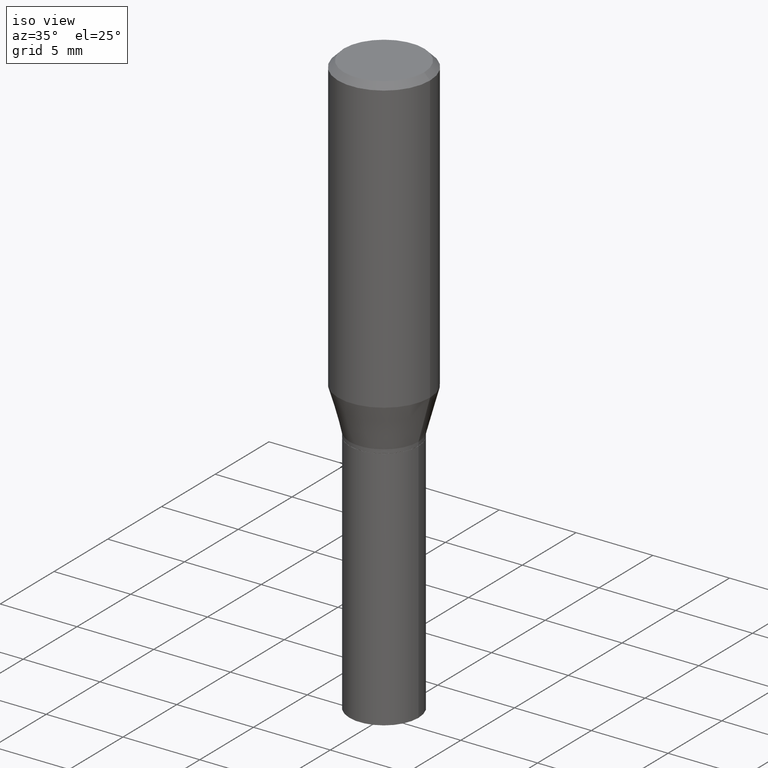
[diagram: clean part render]
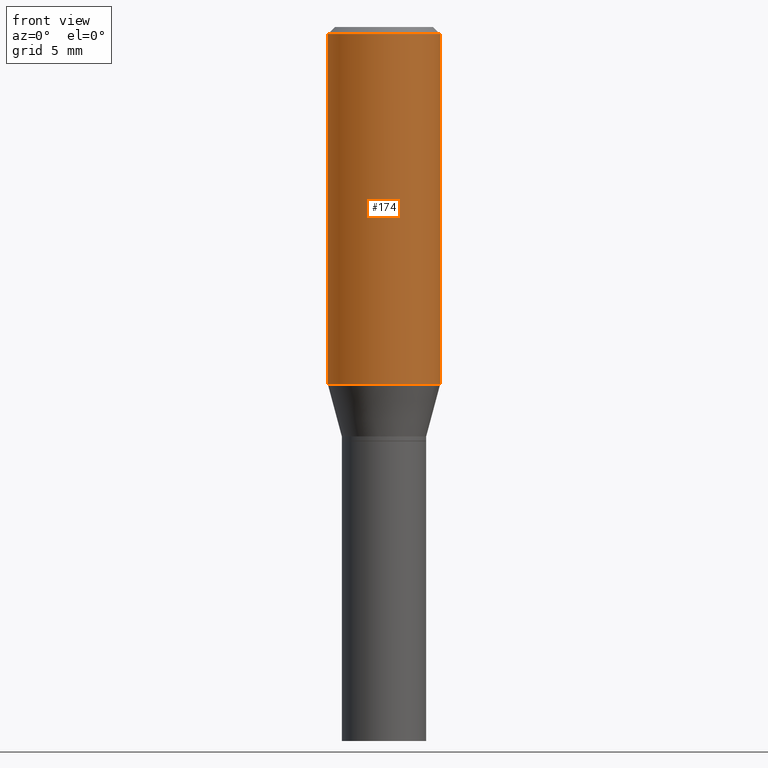
[diagram: tour spotlight — one face highlighted and labeled with its STEP entity id]
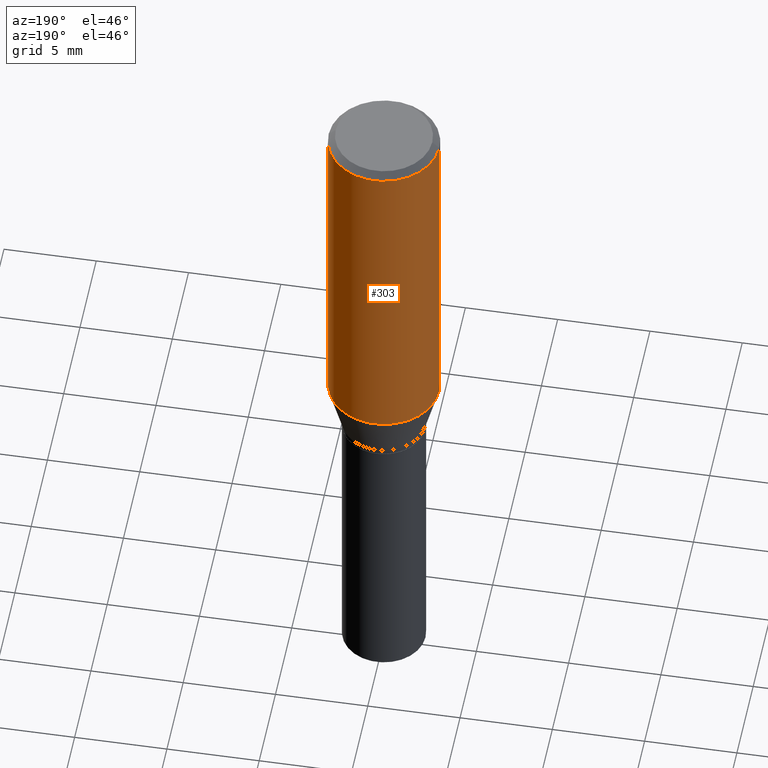
[diagram: tour spotlight — one face highlighted and labeled with its STEP entity id]
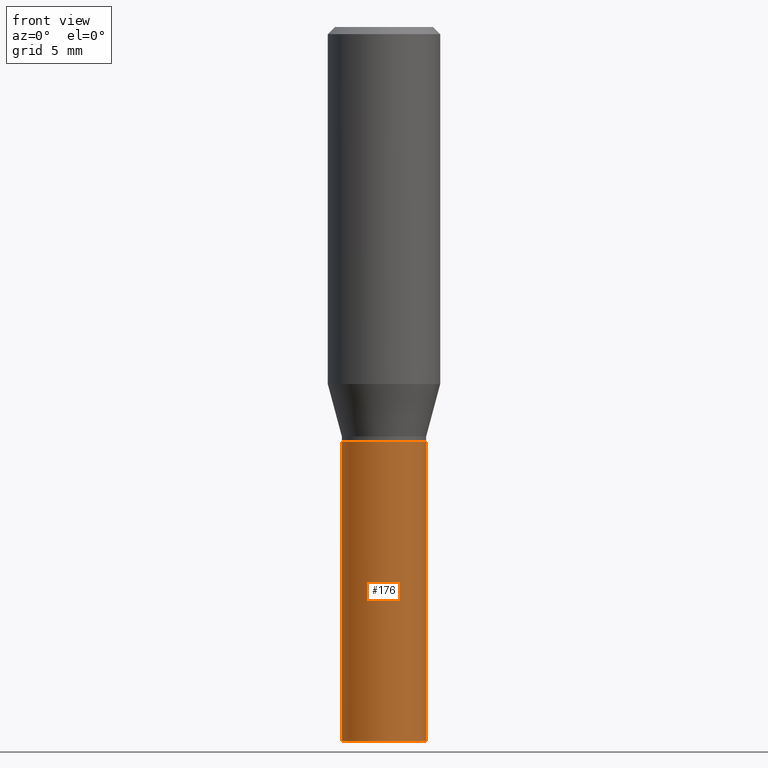
[diagram: tour spotlight — one face highlighted and labeled with its STEP entity id]
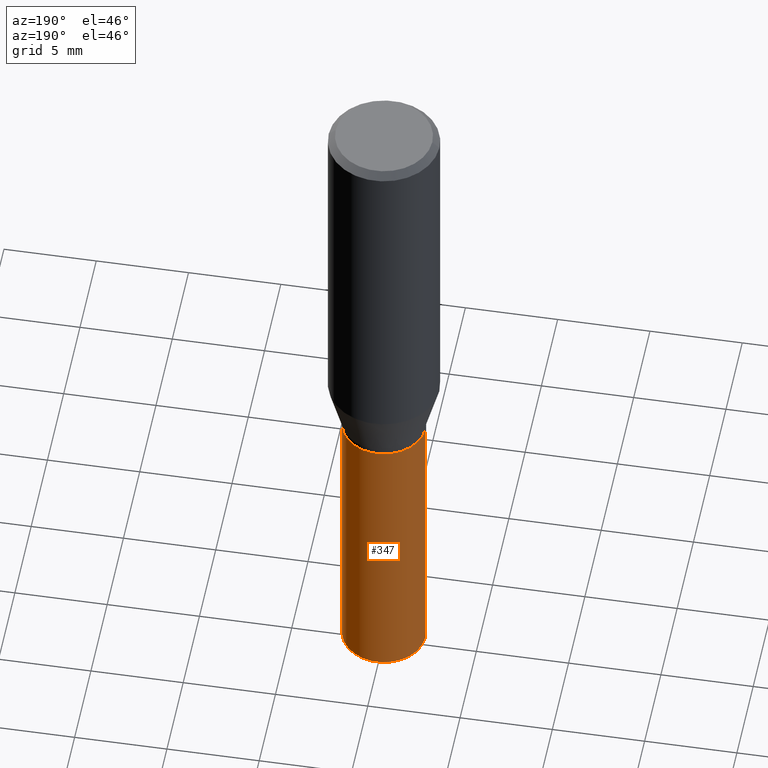
[diagram: tour spotlight — one face highlighted and labeled with its STEP entity id]
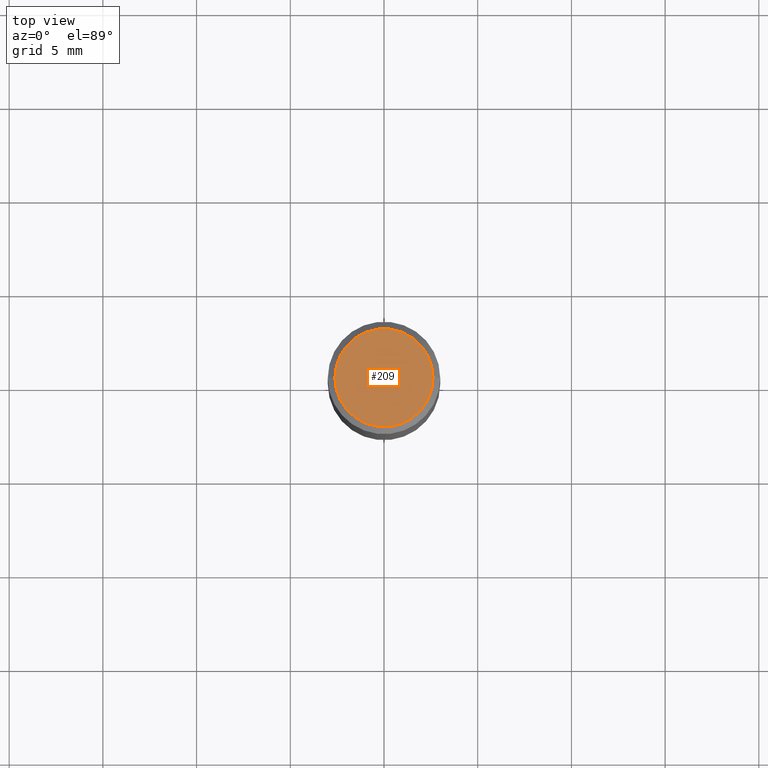
[diagram: tour spotlight — one face highlighted and labeled with its STEP entity id]
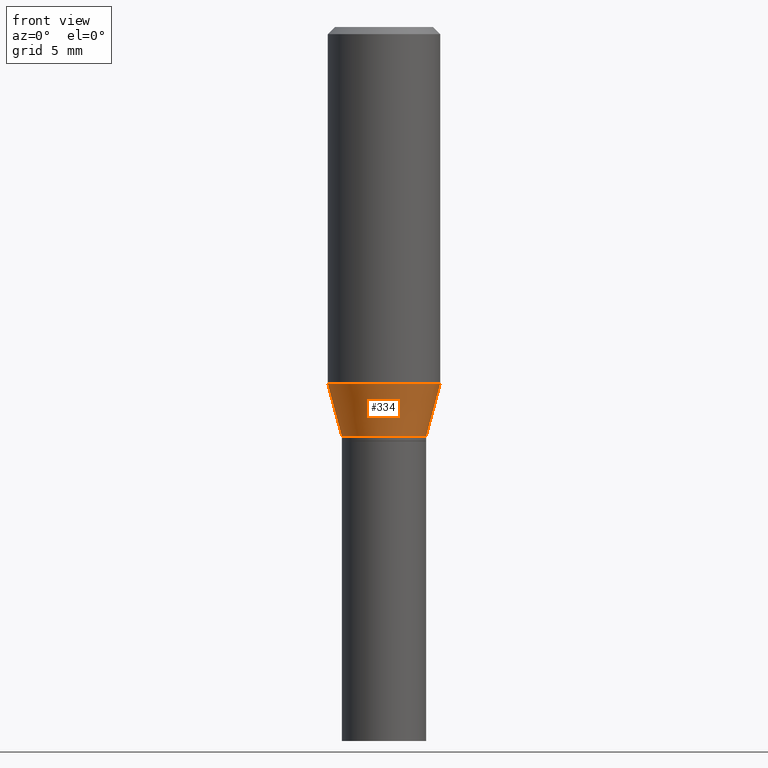
[diagram: tour spotlight — one face highlighted and labeled with its STEP entity id]
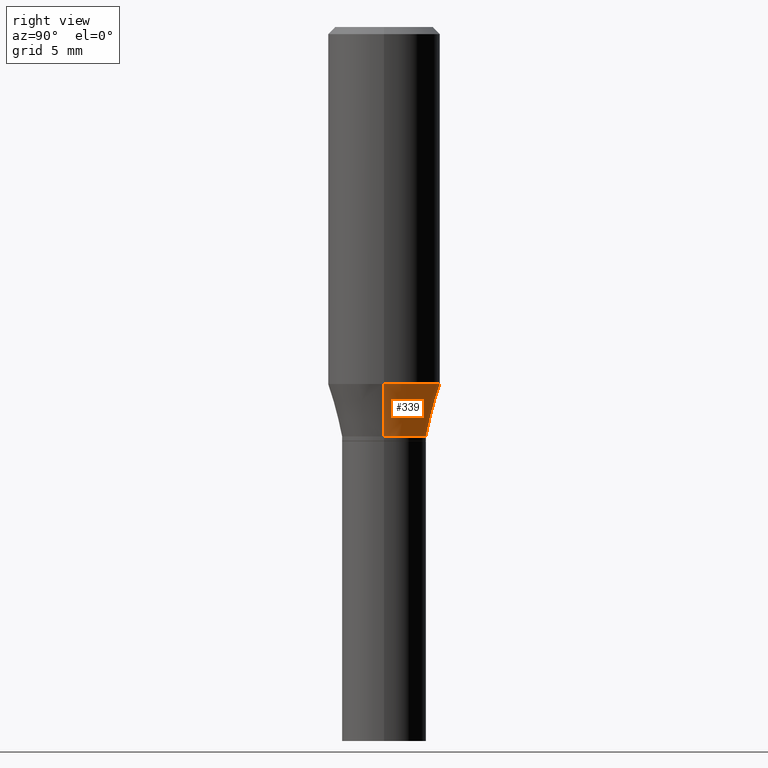
[diagram: tour spotlight — one face highlighted and labeled with its STEP entity id]
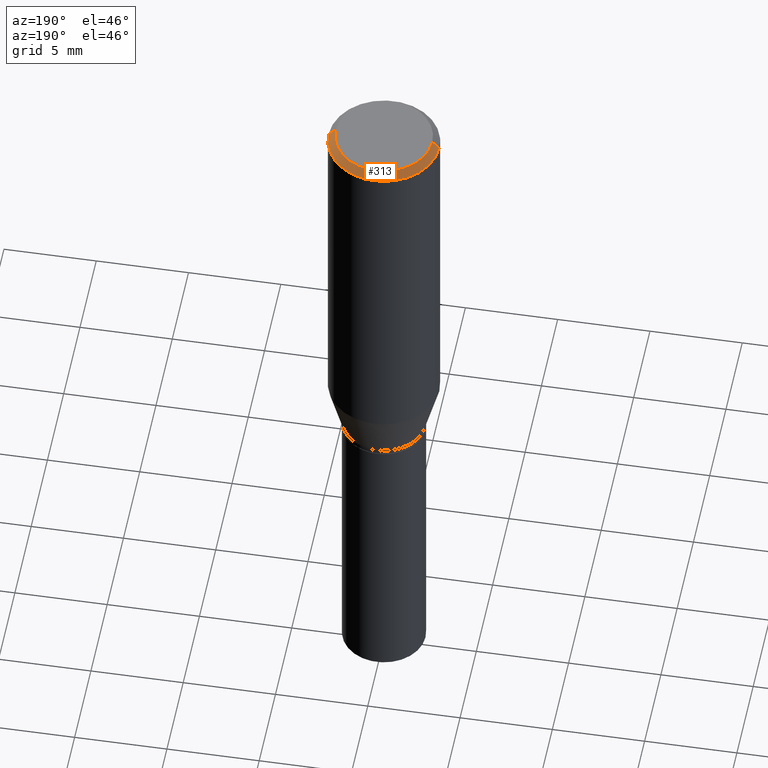
[diagram: tour spotlight — one face highlighted and labeled with its STEP entity id]
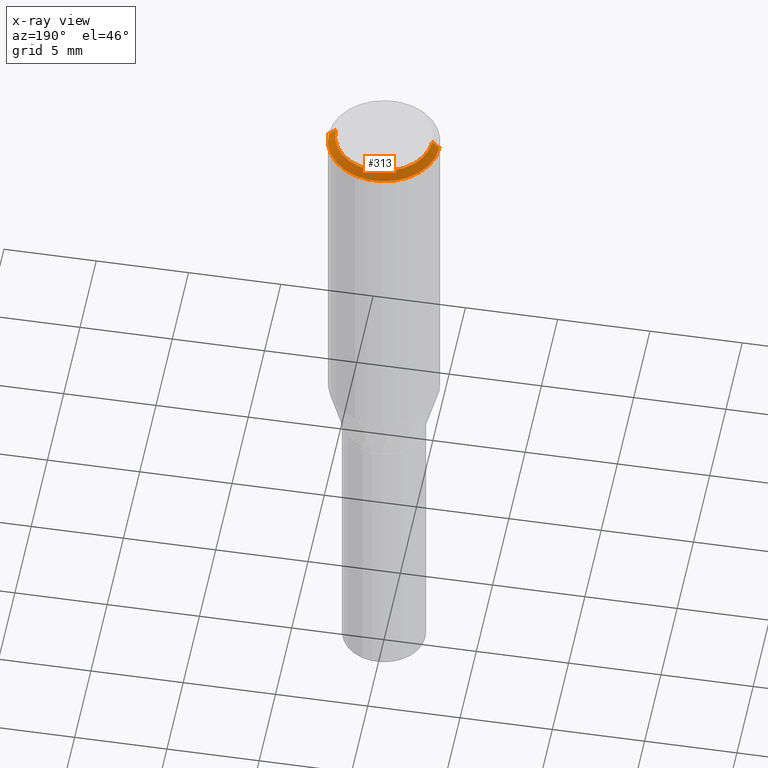
[diagram: x-ray of the same camera — body ghosted, this tour face saturated]
A machine part: a face-by-face anatomy tour. The part has 16 B-rep faces; the first image is the clean iso view, then the 8 largest visible faces are spotlighted one at a time (largest first), each with its STEP entity span.

Face 1 — front view, entity #174. In plain terms, the highlighted cylindrical surface (partial cylindrical patch) has radius 2.9997 mm, axis along (-0, 0, 1).
Definition (entity closure, byte-faithful):
#6 = ORIENTED_EDGE ( 'NONE', *, *, #231, .T. ) ;
#14 = EDGE_LOOP ( 'NONE', ( #377, #137, #6, #222 ) ) ;
#27 = CIRCLE ( 'NONE', #414, 0.1180999999999999966 ) ;
#35 = CARTESIAN_POINT ( 'NONE',  ( 1.834112612126108296E-29, -2.618626719906874490E-15, -0.7500045011767184633 ) ) ;
#36 = CARTESIAN_POINT ( 'NONE',  ( 0.1180999999999999966, -8.246878922347480654E-16, 5.758764772215000440E-30 ) ) ;
#43 = VERTEX_POINT ( 'NONE', #270 ) ;
#59 = CARTESIAN_POINT ( 'NONE',  ( 0.1180999999999999966, -3.443314612141622752E-15, -0.7500045011767184633 ) ) ;
#66 = DIRECTION ( 'NONE',  ( 1.000000000000000000, -6.982962677686266711E-15, 4.876176775795936353E-29 ) ) ;
#76 = EDGE_CURVE ( 'NONE', #466, #365, #441, .T. ) ;
#98 = CARTESIAN_POINT ( 'NONE',  ( -0.1180999999999999966, -4.963484990620824888E-16, -0.01499999999999999944 ) ) ;
#104 = CYLINDRICAL_SURFACE ( 'NONE', #364, 0.1180999999999999966 ) ;
#133 = DIRECTION ( 'NONE',  ( -2.445468806185136597E-29, 3.491481338843145583E-15, 1.000000000000000000 ) ) ;
#134 = EDGE_CURVE ( 'NONE', #43, #466, #357, .T. ) ;
#137 = ORIENTED_EDGE ( 'NONE', *, *, #283, .T. ) ;
#140 = DIRECTION ( 'NONE',  ( 1.000000000000000000, -6.982962677686266711E-15, 0.000000000000000000 ) ) ;
#164 = AXIS2_PLACEMENT_3D ( 'NONE', #400, #324, #140 ) ;
#172 = VERTEX_POINT ( 'NONE', #59 ) ;
#174 = ADVANCED_FACE ( 'NONE', ( #359 ), #104, .T. ) ;
#197 = CARTESIAN_POINT ( 'NONE',  ( 0.1180999999999999966, -8.770601123173952432E-16, -0.01499999999999999944 ) ) ;
#214 = DIRECTION ( 'NONE',  ( -2.445468806185136597E-29, 3.491481338843145583E-15, 1.000000000000000000 ) ) ;
#222 = ORIENTED_EDGE ( 'NONE', *, *, #76, .F. ) ;
#224 = DIRECTION ( 'NONE',  ( 1.000000000000000000, -6.982962677686269077E-15, 0.000000000000000000 ) ) ;
#231 = EDGE_CURVE ( 'NONE', #172, #365, #293, .T. ) ;
#237 = VECTOR ( 'NONE', #331, 39.37007874015748143 ) ;
#246 = CARTESIAN_POINT ( 'NONE',  ( -0.1180999999999999966, 8.391509709326782957E-16, -5.809262341591043784E-30 ) ) ;
#270 = CARTESIAN_POINT ( 'NONE',  ( -0.1180999999999999966, -1.779475748974195898E-15, -0.7500045011767184633 ) ) ;
#280 = VECTOR ( 'NONE', #464, 39.37007874015748143 ) ;
#283 = EDGE_CURVE ( 'NONE', #43, #172, #27, .T. ) ;
#293 = LINE ( 'NONE', #36, #237 ) ;
#317 = CARTESIAN_POINT ( 'NONE',  ( 0.000000000000000000, 0.000000000000000000, 0.000000000000000000 ) ) ;
#324 = DIRECTION ( 'NONE',  ( -2.445468806185136597E-29, 3.491481338843145583E-15, 1.000000000000000000 ) ) ;
#331 = DIRECTION ( 'NONE',  ( -2.445468806185136877E-29, 3.491481338843145188E-15, 1.000000000000000000 ) ) ;
#357 = LINE ( 'NONE', #246, #280 ) ;
#359 = FACE_OUTER_BOUND ( 'NONE', #14, .T. ) ;
#364 = AXIS2_PLACEMENT_3D ( 'NONE', #317, #133, #66 ) ;
#365 = VERTEX_POINT ( 'NONE', #197 ) ;
#377 = ORIENTED_EDGE ( 'NONE', *, *, #134, .F. ) ;
#400 = CARTESIAN_POINT ( 'NONE',  ( 3.668203209277705088E-31, -5.237222008264718399E-17, -0.01499999999999999944 ) ) ;
#414 = AXIS2_PLACEMENT_3D ( 'NONE', #35, #214, #224 ) ;
#441 = CIRCLE ( 'NONE', #164, 0.1180999999999999966 ) ;
#464 = DIRECTION ( 'NONE',  ( -2.445468806185136877E-29, 3.491481338843145188E-15, 1.000000000000000000 ) ) ;
#466 = VERTEX_POINT ( 'NONE', #98 ) ;

Face 2 — auxiliary view, entity #303. In plain terms, the highlighted cylindrical surface (partial cylindrical patch) has radius 2.9997 mm, axis along (-0, 0, 1).
Definition (entity closure, byte-faithful):
#3 = EDGE_CURVE ( 'NONE', #172, #43, #121, .T. ) ;
#4 = DIRECTION ( 'NONE',  ( 1.000000000000000000, -6.982962677686266711E-15, 0.000000000000000000 ) ) ;
#10 = CARTESIAN_POINT ( 'NONE',  ( 0.000000000000000000, 0.000000000000000000, 0.000000000000000000 ) ) ;
#36 = CARTESIAN_POINT ( 'NONE',  ( 0.1180999999999999966, -8.246878922347480654E-16, 5.758764772215000440E-30 ) ) ;
#43 = VERTEX_POINT ( 'NONE', #270 ) ;
#57 = CIRCLE ( 'NONE', #295, 0.1180999999999999966 ) ;
#58 = DIRECTION ( 'NONE',  ( -2.445468806185136597E-29, 3.491481338843145583E-15, 1.000000000000000000 ) ) ;
#59 = CARTESIAN_POINT ( 'NONE',  ( 0.1180999999999999966, -3.443314612141622752E-15, -0.7500045011767184633 ) ) ;
#74 = DIRECTION ( 'NONE',  ( 1.000000000000000000, -6.982962677686266711E-15, 4.876176775795936353E-29 ) ) ;
#81 = ORIENTED_EDGE ( 'NONE', *, *, #231, .F. ) ;
#98 = CARTESIAN_POINT ( 'NONE',  ( -0.1180999999999999966, -4.963484990620824888E-16, -0.01499999999999999944 ) ) ;
#121 = CIRCLE ( 'NONE', #336, 0.1180999999999999966 ) ;
#134 = EDGE_CURVE ( 'NONE', #43, #466, #357, .T. ) ;
#141 = ORIENTED_EDGE ( 'NONE', *, *, #332, .F. ) ;
#146 = EDGE_LOOP ( 'NONE', ( #375, #444, #141, #81 ) ) ;
#172 = VERTEX_POINT ( 'NONE', #59 ) ;
#181 = FACE_OUTER_BOUND ( 'NONE', #146, .T. ) ;
#192 = DIRECTION ( 'NONE',  ( -2.445468806185136597E-29, 3.491481338843145583E-15, 1.000000000000000000 ) ) ;
#197 = CARTESIAN_POINT ( 'NONE',  ( 0.1180999999999999966, -8.770601123173952432E-16, -0.01499999999999999944 ) ) ;
#231 = EDGE_CURVE ( 'NONE', #172, #365, #293, .T. ) ;
#237 = VECTOR ( 'NONE', #331, 39.37007874015748143 ) ;
#246 = CARTESIAN_POINT ( 'NONE',  ( -0.1180999999999999966, 8.391509709326782957E-16, -5.809262341591043784E-30 ) ) ;
#259 = DIRECTION ( 'NONE',  ( -2.445468806185136597E-29, 3.491481338843145583E-15, 1.000000000000000000 ) ) ;
#267 = AXIS2_PLACEMENT_3D ( 'NONE', #10, #259, #74 ) ;
#270 = CARTESIAN_POINT ( 'NONE',  ( -0.1180999999999999966, -1.779475748974195898E-15, -0.7500045011767184633 ) ) ;
#280 = VECTOR ( 'NONE', #464, 39.37007874015748143 ) ;
#293 = LINE ( 'NONE', #36, #237 ) ;
#295 = AXIS2_PLACEMENT_3D ( 'NONE', #443, #192, #4 ) ;
#303 = ADVANCED_FACE ( 'NONE', ( #181 ), #337, .T. ) ;
#331 = DIRECTION ( 'NONE',  ( -2.445468806185136877E-29, 3.491481338843145188E-15, 1.000000000000000000 ) ) ;
#332 = EDGE_CURVE ( 'NONE', #365, #466, #57, .T. ) ;
#336 = AXIS2_PLACEMENT_3D ( 'NONE', #418, #58, #460 ) ;
#337 = CYLINDRICAL_SURFACE ( 'NONE', #267, 0.1180999999999999966 ) ;
#357 = LINE ( 'NONE', #246, #280 ) ;
#365 = VERTEX_POINT ( 'NONE', #197 ) ;
#375 = ORIENTED_EDGE ( 'NONE', *, *, #3, .T. ) ;
#418 = CARTESIAN_POINT ( 'NONE',  ( 1.834112612126108296E-29, -2.618626719906874490E-15, -0.7500045011767184633 ) ) ;
#443 = CARTESIAN_POINT ( 'NONE',  ( 3.668203209277705088E-31, -5.237222008264718399E-17, -0.01499999999999999944 ) ) ;
#444 = ORIENTED_EDGE ( 'NONE', *, *, #134, .T. ) ;
#460 = DIRECTION ( 'NONE',  ( 1.000000000000000000, -6.982962677686269077E-15, 0.000000000000000000 ) ) ;
#464 = DIRECTION ( 'NONE',  ( -2.445468806185136877E-29, 3.491481338843145188E-15, 1.000000000000000000 ) ) ;
#466 = VERTEX_POINT ( 'NONE', #98 ) ;

Face 3 — front view, entity #176. In plain terms, the highlighted cylindrical surface (partial cylindrical patch) has radius 2.2504 mm, axis along (-0, 0, 1).
Definition (entity closure, byte-faithful):
#34 = AXIS2_PLACEMENT_3D ( 'NONE', #457, #459, #165 ) ;
#47 = DIRECTION ( 'NONE',  ( -2.445468806185136877E-29, 3.491481338843145188E-15, 1.000000000000000000 ) ) ;
#84 = ORIENTED_EDGE ( 'NONE', *, *, #387, .F. ) ;
#85 = CARTESIAN_POINT ( 'NONE',  ( 0.08859999999999999820, -6.186904932430032487E-16, 4.320292623355198765E-30 ) ) ;
#90 = DIRECTION ( 'NONE',  ( 1.000000000000000000, -6.982962677686269077E-15, 0.000000000000000000 ) ) ;
#94 = CARTESIAN_POINT ( 'NONE',  ( -0.08859999999999999820, 6.295408638834487519E-16, -4.358176489965846267E-30 ) ) ;
#95 = VERTEX_POINT ( 'NONE', #402 ) ;
#97 = CIRCLE ( 'NONE', #34, 0.08859999999999999820 ) ;
#99 = EDGE_LOOP ( 'NONE', ( #279, #390, #150, #84 ) ) ;
#150 = ORIENTED_EDGE ( 'NONE', *, *, #354, .T. ) ;
#153 = VERTEX_POINT ( 'NONE', #167 ) ;
#165 = DIRECTION ( 'NONE',  ( 1.000000000000000000, -6.982962677686263555E-15, 0.000000000000000000 ) ) ;
#167 = CARTESIAN_POINT ( 'NONE',  ( 0.08859999999999999820, -5.855912501507721918E-15, -1.500000000000000222 ) ) ;
#176 = ADVANCED_FACE ( 'NONE', ( #465 ), #429, .T. ) ;
#182 = VERTEX_POINT ( 'NONE', #249 ) ;
#183 = CARTESIAN_POINT ( 'NONE',  ( -0.08859999999999999820, -3.508039096712621630E-15, -0.8701000000000000956 ) ) ;
#195 = LINE ( 'NONE', #94, #307 ) ;
#205 = DIRECTION ( 'NONE',  ( 1.000000000000000000, -6.982962677686266711E-15, 4.876176775795935232E-29 ) ) ;
#210 = CARTESIAN_POINT ( 'NONE',  ( 0.000000000000000000, 0.000000000000000000, 0.000000000000000000 ) ) ;
#232 = DIRECTION ( 'NONE',  ( -2.445468806185136597E-29, 3.491481338843145583E-15, 1.000000000000000000 ) ) ;
#244 = VECTOR ( 'NONE', #47, 39.37007874015748143 ) ;
#247 = DIRECTION ( 'NONE',  ( -2.445468806185136597E-29, 3.491481338843145583E-15, 1.000000000000000000 ) ) ;
#248 = DIRECTION ( 'NONE',  ( -2.445468806185136877E-29, 3.491481338843145188E-15, 1.000000000000000000 ) ) ;
#249 = CARTESIAN_POINT ( 'NONE',  ( 0.08859999999999999820, -3.656628406170424159E-15, -0.8701000000000000956 ) ) ;
#269 = LINE ( 'NONE', #85, #244 ) ;
#279 = ORIENTED_EDGE ( 'NONE', *, *, #432, .F. ) ;
#281 = CIRCLE ( 'NONE', #405, 0.08859999999999999820 ) ;
#305 = VERTEX_POINT ( 'NONE', #183 ) ;
#307 = VECTOR ( 'NONE', #248, 39.37007874015748143 ) ;
#348 = AXIS2_PLACEMENT_3D ( 'NONE', #210, #247, #205 ) ;
#354 = EDGE_CURVE ( 'NONE', #153, #182, #269, .T. ) ;
#361 = EDGE_CURVE ( 'NONE', #95, #153, #281, .T. ) ;
#387 = EDGE_CURVE ( 'NONE', #305, #182, #97, .T. ) ;
#390 = ORIENTED_EDGE ( 'NONE', *, *, #361, .T. ) ;
#402 = CARTESIAN_POINT ( 'NONE',  ( -0.08859999999999999820, -3.508039096712621630E-15, -1.500000000000000222 ) ) ;
#405 = AXIS2_PLACEMENT_3D ( 'NONE', #455, #232, #90 ) ;
#429 = CYLINDRICAL_SURFACE ( 'NONE', #348, 0.08859999999999999820 ) ;
#432 = EDGE_CURVE ( 'NONE', #95, #305, #195, .T. ) ;
#455 = CARTESIAN_POINT ( 'NONE',  ( 3.668203209277704895E-29, -5.237222008264718177E-15, -1.500000000000000222 ) ) ;
#457 = CARTESIAN_POINT ( 'NONE',  ( 2.127802408261687534E-29, -3.037937912927421601E-15, -0.8701000000000000956 ) ) ;
#459 = DIRECTION ( 'NONE',  ( -2.445468806185136597E-29, 3.491481338843145583E-15, 1.000000000000000000 ) ) ;
#465 = FACE_OUTER_BOUND ( 'NONE', #99, .T. ) ;

Face 4 — auxiliary view, entity #347. In plain terms, the highlighted cylindrical surface (partial cylindrical patch) has radius 2.2504 mm, axis along (-0, 0, 1).
Definition (entity closure, byte-faithful):
#16 = CARTESIAN_POINT ( 'NONE',  ( 0.000000000000000000, 0.000000000000000000, 0.000000000000000000 ) ) ;
#47 = DIRECTION ( 'NONE',  ( -2.445468806185136877E-29, 3.491481338843145188E-15, 1.000000000000000000 ) ) ;
#49 = AXIS2_PLACEMENT_3D ( 'NONE', #417, #87, #91 ) ;
#85 = CARTESIAN_POINT ( 'NONE',  ( 0.08859999999999999820, -6.186904932430032487E-16, 4.320292623355198765E-30 ) ) ;
#87 = DIRECTION ( 'NONE',  ( -2.445468806185136597E-29, 3.491481338843145583E-15, 1.000000000000000000 ) ) ;
#91 = DIRECTION ( 'NONE',  ( 1.000000000000000000, -6.982962677686263555E-15, 0.000000000000000000 ) ) ;
#94 = CARTESIAN_POINT ( 'NONE',  ( -0.08859999999999999820, 6.295408638834487519E-16, -4.358176489965846267E-30 ) ) ;
#95 = VERTEX_POINT ( 'NONE', #402 ) ;
#103 = CIRCLE ( 'NONE', #258, 0.08859999999999999820 ) ;
#138 = DIRECTION ( 'NONE',  ( -2.445468806185136597E-29, 3.491481338843145583E-15, 1.000000000000000000 ) ) ;
#145 = EDGE_CURVE ( 'NONE', #153, #95, #103, .T. ) ;
#153 = VERTEX_POINT ( 'NONE', #167 ) ;
#155 = ORIENTED_EDGE ( 'NONE', *, *, #354, .F. ) ;
#161 = DIRECTION ( 'NONE',  ( -2.445468806185136597E-29, 3.491481338843145583E-15, 1.000000000000000000 ) ) ;
#166 = DIRECTION ( 'NONE',  ( 1.000000000000000000, -6.982962677686269077E-15, 0.000000000000000000 ) ) ;
#167 = CARTESIAN_POINT ( 'NONE',  ( 0.08859999999999999820, -5.855912501507721918E-15, -1.500000000000000222 ) ) ;
#179 = EDGE_LOOP ( 'NONE', ( #297, #407, #333, #155 ) ) ;
#182 = VERTEX_POINT ( 'NONE', #249 ) ;
#183 = CARTESIAN_POINT ( 'NONE',  ( -0.08859999999999999820, -3.508039096712621630E-15, -0.8701000000000000956 ) ) ;
#195 = LINE ( 'NONE', #94, #307 ) ;
#244 = VECTOR ( 'NONE', #47, 39.37007874015748143 ) ;
#248 = DIRECTION ( 'NONE',  ( -2.445468806185136877E-29, 3.491481338843145188E-15, 1.000000000000000000 ) ) ;
#249 = CARTESIAN_POINT ( 'NONE',  ( 0.08859999999999999820, -3.656628406170424159E-15, -0.8701000000000000956 ) ) ;
#258 = AXIS2_PLACEMENT_3D ( 'NONE', #321, #138, #166 ) ;
#269 = LINE ( 'NONE', #85, #244 ) ;
#297 = ORIENTED_EDGE ( 'NONE', *, *, #145, .T. ) ;
#305 = VERTEX_POINT ( 'NONE', #183 ) ;
#307 = VECTOR ( 'NONE', #248, 39.37007874015748143 ) ;
#310 = DIRECTION ( 'NONE',  ( 1.000000000000000000, -6.982962677686266711E-15, 4.876176775795935232E-29 ) ) ;
#321 = CARTESIAN_POINT ( 'NONE',  ( 3.668203209277704895E-29, -5.237222008264718177E-15, -1.500000000000000222 ) ) ;
#333 = ORIENTED_EDGE ( 'NONE', *, *, #382, .F. ) ;
#347 = ADVANCED_FACE ( 'NONE', ( #352 ), #422, .T. ) ;
#352 = FACE_OUTER_BOUND ( 'NONE', #179, .T. ) ;
#354 = EDGE_CURVE ( 'NONE', #153, #182, #269, .T. ) ;
#363 = CIRCLE ( 'NONE', #49, 0.08859999999999999820 ) ;
#382 = EDGE_CURVE ( 'NONE', #182, #305, #363, .T. ) ;
#402 = CARTESIAN_POINT ( 'NONE',  ( -0.08859999999999999820, -3.508039096712621630E-15, -1.500000000000000222 ) ) ;
#407 = ORIENTED_EDGE ( 'NONE', *, *, #432, .T. ) ;
#417 = CARTESIAN_POINT ( 'NONE',  ( 2.127802408261687534E-29, -3.037937912927421601E-15, -0.8701000000000000956 ) ) ;
#422 = CYLINDRICAL_SURFACE ( 'NONE', #450, 0.08859999999999999820 ) ;
#432 = EDGE_CURVE ( 'NONE', #95, #305, #195, .T. ) ;
#450 = AXIS2_PLACEMENT_3D ( 'NONE', #16, #161, #310 ) ;

Face 5 — top view, entity #209. In plain terms, the highlighted planar face has unit normal (0, -0, -1).
Definition (entity closure, byte-faithful):
#39 = VERTEX_POINT ( 'NONE', #236 ) ;
#51 = EDGE_CURVE ( 'NONE', #286, #39, #319, .T. ) ;
#71 = AXIS2_PLACEMENT_3D ( 'NONE', #77, #437, #304 ) ;
#77 = CARTESIAN_POINT ( 'NONE',  ( 4.647400995173613138E-45, -6.635256932220833331E-31, -1.900413116462290932E-16 ) ) ;
#89 = CIRCLE ( 'NONE', #71, 0.1031000000000000111 ) ;
#115 = ORIENTED_EDGE ( 'NONE', *, *, #326, .T. ) ;
#119 = PLANE ( 'NONE',  #131 ) ;
#131 = AXIS2_PLACEMENT_3D ( 'NONE', #374, #371, #448 ) ;
#154 = CARTESIAN_POINT ( 'NONE',  ( 0.1031000000000000111, -7.849571885948552706E-16, -1.900413116462238423E-16 ) ) ;
#162 = DIRECTION ( 'NONE',  ( -2.445468806185136597E-29, 3.491481338843145583E-15, 1.000000000000000000 ) ) ;
#189 = AXIS2_PLACEMENT_3D ( 'NONE', #423, #162, #242 ) ;
#209 = ADVANCED_FACE ( 'NONE', ( #263 ), #119, .F. ) ;
#236 = CARTESIAN_POINT ( 'NONE',  ( -0.1031000000000000111, 7.461295621107772493E-16, -1.900413116462341961E-16 ) ) ;
#241 = EDGE_LOOP ( 'NONE', ( #115, #323 ) ) ;
#242 = DIRECTION ( 'NONE',  ( 1.000000000000000000, -6.982962677686265922E-15, 4.883331232093008327E-29 ) ) ;
#263 = FACE_OUTER_BOUND ( 'NONE', #241, .T. ) ;
#286 = VERTEX_POINT ( 'NONE', #154 ) ;
#304 = DIRECTION ( 'NONE',  ( 1.000000000000000000, -6.982962677686265922E-15, 4.883331232093008327E-29 ) ) ;
#319 = CIRCLE ( 'NONE', #189, 0.1031000000000000111 ) ;
#323 = ORIENTED_EDGE ( 'NONE', *, *, #51, .T. ) ;
#326 = EDGE_CURVE ( 'NONE', #39, #286, #89, .T. ) ;
#371 = DIRECTION ( 'NONE',  ( 2.438088387897960049E-29, -3.491481338843145188E-15, -1.000000000000000000 ) ) ;
#374 = CARTESIAN_POINT ( 'NONE',  ( 7.199434520694541042E-16, 0.1031000000000000111, -4.549923818578428559E-16 ) ) ;
#423 = CARTESIAN_POINT ( 'NONE',  ( 4.647400995173613138E-45, -6.635256932220833331E-31, -1.900413116462290932E-16 ) ) ;
#437 = DIRECTION ( 'NONE',  ( -2.445468806185136597E-29, 3.491481338843145583E-15, 1.000000000000000000 ) ) ;
#448 = DIRECTION ( 'NONE',  ( -1.000000000000000000, 6.982962677686265922E-15, -4.876176775795935793E-29 ) ) ;

Face 6 — front view, entity #334. In plain terms, the highlighted conical surface has half-angle 15 deg.
Definition (entity closure, byte-faithful):
#5 = EDGE_CURVE ( 'NONE', #196, #43, #86, .T. ) ;
#11 = ORIENTED_EDGE ( 'NONE', *, *, #5, .F. ) ;
#13 = CARTESIAN_POINT ( 'NONE',  ( 2.103347720199836549E-29, -3.003023099538990346E-15, -0.8601000000000001977 ) ) ;
#15 = EDGE_CURVE ( 'NONE', #196, #215, #207, .T. ) ;
#18 = DIRECTION ( 'NONE',  ( -2.445468806185136597E-29, 3.491481338843145583E-15, 1.000000000000000000 ) ) ;
#27 = CIRCLE ( 'NONE', #414, 0.1180999999999999966 ) ;
#31 = CARTESIAN_POINT ( 'NONE',  ( 0.08859999999999994269, -3.621713592781993299E-15, -0.8601000000000001977 ) ) ;
#35 = CARTESIAN_POINT ( 'NONE',  ( 1.834112612126108296E-29, -2.618626719906874490E-15, -0.7500045011767184633 ) ) ;
#43 = VERTEX_POINT ( 'NONE', #270 ) ;
#50 = VECTOR ( 'NONE', #296, 39.37007874015747433 ) ;
#53 = DIRECTION ( 'NONE',  ( 1.000000000000000000, -6.982962677686268288E-15, 0.000000000000000000 ) ) ;
#54 = CARTESIAN_POINT ( 'NONE',  ( -0.08859999999999994269, -2.373482235655541495E-15, -0.8601000000000001977 ) ) ;
#55 = DIRECTION ( 'NONE',  ( -0.2588190451025214611, 5.211531920934551042E-15, 0.9659258262890682012 ) ) ;
#59 = CARTESIAN_POINT ( 'NONE',  ( 0.1180999999999999966, -3.443314612141622752E-15, -0.7500045011767184633 ) ) ;
#86 = LINE ( 'NONE', #54, #306 ) ;
#136 = CARTESIAN_POINT ( 'NONE',  ( -0.08859999999999994269, -2.076478992314868894E-15, -0.8601000000000001977 ) ) ;
#144 = DIRECTION ( 'NONE',  ( -2.445468806185136597E-29, 3.491481338843145583E-15, 1.000000000000000000 ) ) ;
#172 = VERTEX_POINT ( 'NONE', #59 ) ;
#196 = VERTEX_POINT ( 'NONE', #136 ) ;
#198 = AXIS2_PLACEMENT_3D ( 'NONE', #13, #144, #260 ) ;
#200 = CARTESIAN_POINT ( 'NONE',  ( 2.103347720199836549E-29, -3.003023099538990346E-15, -0.8601000000000001977 ) ) ;
#207 = CIRCLE ( 'NONE', #463, 0.08859999999999994269 ) ;
#214 = DIRECTION ( 'NONE',  ( -2.445468806185136597E-29, 3.491481338843145583E-15, 1.000000000000000000 ) ) ;
#215 = VERTEX_POINT ( 'NONE', #31 ) ;
#224 = DIRECTION ( 'NONE',  ( 1.000000000000000000, -6.982962677686269077E-15, 0.000000000000000000 ) ) ;
#255 = LINE ( 'NONE', #329, #50 ) ;
#260 = DIRECTION ( 'NONE',  ( 1.000000000000000000, -6.982962677686268288E-15, 0.000000000000000000 ) ) ;
#270 = CARTESIAN_POINT ( 'NONE',  ( -0.1180999999999999966, -1.779475748974195898E-15, -0.7500045011767184633 ) ) ;
#283 = EDGE_CURVE ( 'NONE', #43, #172, #27, .T. ) ;
#296 = DIRECTION ( 'NONE',  ( 0.2588190451025214611, 1.565188264969621573E-15, 0.9659258262890682012 ) ) ;
#306 = VECTOR ( 'NONE', #55, 39.37007874015747433 ) ;
#308 = EDGE_CURVE ( 'NONE', #215, #172, #255, .T. ) ;
#329 = CARTESIAN_POINT ( 'NONE',  ( 0.08859999999999994269, -3.621713592781993299E-15, -0.8601000000000001977 ) ) ;
#334 = ADVANCED_FACE ( 'NONE', ( #342 ), #399, .T. ) ;
#342 = FACE_OUTER_BOUND ( 'NONE', #372, .T. ) ;
#372 = EDGE_LOOP ( 'NONE', ( #11, #410, #416, #447 ) ) ;
#399 = CONICAL_SURFACE ( 'NONE', #198, 0.08859999999999994269, 0.2617993877991501295 ) ;
#410 = ORIENTED_EDGE ( 'NONE', *, *, #15, .T. ) ;
#414 = AXIS2_PLACEMENT_3D ( 'NONE', #35, #214, #224 ) ;
#416 = ORIENTED_EDGE ( 'NONE', *, *, #308, .T. ) ;
#447 = ORIENTED_EDGE ( 'NONE', *, *, #283, .F. ) ;
#463 = AXIS2_PLACEMENT_3D ( 'NONE', #200, #18, #53 ) ;

Face 7 — right view, entity #339. In plain terms, the highlighted conical surface has half-angle 15 deg.
Definition (entity closure, byte-faithful):
#3 = EDGE_CURVE ( 'NONE', #172, #43, #121, .T. ) ;
#5 = EDGE_CURVE ( 'NONE', #196, #43, #86, .T. ) ;
#21 = CARTESIAN_POINT ( 'NONE',  ( 2.103347720199836549E-29, -3.003023099538990346E-15, -0.8601000000000001977 ) ) ;
#31 = CARTESIAN_POINT ( 'NONE',  ( 0.08859999999999994269, -3.621713592781993299E-15, -0.8601000000000001977 ) ) ;
#42 = DIRECTION ( 'NONE',  ( -2.445468806185136597E-29, 3.491481338843145583E-15, 1.000000000000000000 ) ) ;
#43 = VERTEX_POINT ( 'NONE', #270 ) ;
#50 = VECTOR ( 'NONE', #296, 39.37007874015747433 ) ;
#54 = CARTESIAN_POINT ( 'NONE',  ( -0.08859999999999994269, -2.373482235655541495E-15, -0.8601000000000001977 ) ) ;
#55 = DIRECTION ( 'NONE',  ( -0.2588190451025214611, 5.211531920934551042E-15, 0.9659258262890682012 ) ) ;
#58 = DIRECTION ( 'NONE',  ( -2.445468806185136597E-29, 3.491481338843145583E-15, 1.000000000000000000 ) ) ;
#59 = CARTESIAN_POINT ( 'NONE',  ( 0.1180999999999999966, -3.443314612141622752E-15, -0.7500045011767184633 ) ) ;
#64 = AXIS2_PLACEMENT_3D ( 'NONE', #21, #451, #123 ) ;
#83 = FACE_OUTER_BOUND ( 'NONE', #350, .T. ) ;
#86 = LINE ( 'NONE', #54, #306 ) ;
#120 = ORIENTED_EDGE ( 'NONE', *, *, #316, .T. ) ;
#121 = CIRCLE ( 'NONE', #336, 0.1180999999999999966 ) ;
#123 = DIRECTION ( 'NONE',  ( 1.000000000000000000, -6.982962677686268288E-15, 0.000000000000000000 ) ) ;
#136 = CARTESIAN_POINT ( 'NONE',  ( -0.08859999999999994269, -2.076478992314868894E-15, -0.8601000000000001977 ) ) ;
#142 = DIRECTION ( 'NONE',  ( 1.000000000000000000, -6.982962677686268288E-15, 0.000000000000000000 ) ) ;
#143 = ORIENTED_EDGE ( 'NONE', *, *, #5, .T. ) ;
#172 = VERTEX_POINT ( 'NONE', #59 ) ;
#178 = CARTESIAN_POINT ( 'NONE',  ( 2.103347720199836549E-29, -3.003023099538990346E-15, -0.8601000000000001977 ) ) ;
#196 = VERTEX_POINT ( 'NONE', #136 ) ;
#202 = CIRCLE ( 'NONE', #218, 0.08859999999999994269 ) ;
#213 = ORIENTED_EDGE ( 'NONE', *, *, #308, .F. ) ;
#215 = VERTEX_POINT ( 'NONE', #31 ) ;
#218 = AXIS2_PLACEMENT_3D ( 'NONE', #178, #42, #142 ) ;
#255 = LINE ( 'NONE', #329, #50 ) ;
#270 = CARTESIAN_POINT ( 'NONE',  ( -0.1180999999999999966, -1.779475748974195898E-15, -0.7500045011767184633 ) ) ;
#296 = DIRECTION ( 'NONE',  ( 0.2588190451025214611, 1.565188264969621573E-15, 0.9659258262890682012 ) ) ;
#306 = VECTOR ( 'NONE', #55, 39.37007874015747433 ) ;
#308 = EDGE_CURVE ( 'NONE', #215, #172, #255, .T. ) ;
#316 = EDGE_CURVE ( 'NONE', #215, #196, #202, .T. ) ;
#325 = CONICAL_SURFACE ( 'NONE', #64, 0.08859999999999994269, 0.2617993877991501295 ) ;
#329 = CARTESIAN_POINT ( 'NONE',  ( 0.08859999999999994269, -3.621713592781993299E-15, -0.8601000000000001977 ) ) ;
#336 = AXIS2_PLACEMENT_3D ( 'NONE', #418, #58, #460 ) ;
#339 = ADVANCED_FACE ( 'NONE', ( #83 ), #325, .T. ) ;
#350 = EDGE_LOOP ( 'NONE', ( #120, #143, #393, #213 ) ) ;
#393 = ORIENTED_EDGE ( 'NONE', *, *, #3, .F. ) ;
#418 = CARTESIAN_POINT ( 'NONE',  ( 1.834112612126108296E-29, -2.618626719906874490E-15, -0.7500045011767184633 ) ) ;
#451 = DIRECTION ( 'NONE',  ( -2.445468806185136597E-29, 3.491481338843145583E-15, 1.000000000000000000 ) ) ;
#460 = DIRECTION ( 'NONE',  ( 1.000000000000000000, -6.982962677686269077E-15, 0.000000000000000000 ) ) ;

Face 8 — auxiliary view, entity #313. An x-ray twin of the same camera follows (body ghosted, this face saturated) — the face is partly hidden behind the body. In plain terms, the highlighted conical surface has half-angle 45 deg.
Definition (entity closure, byte-faithful):
#4 = DIRECTION ( 'NONE',  ( 1.000000000000000000, -6.982962677686266711E-15, 0.000000000000000000 ) ) ;
#7 = CARTESIAN_POINT ( 'NONE',  ( 0.1180999999999999966, -8.625970336194650129E-16, -0.01499999999999999944 ) ) ;
#24 = ORIENTED_EDGE ( 'NONE', *, *, #314, .T. ) ;
#39 = VERTEX_POINT ( 'NONE', #236 ) ;
#51 = EDGE_CURVE ( 'NONE', #286, #39, #319, .T. ) ;
#57 = CIRCLE ( 'NONE', #295, 0.1180999999999999966 ) ;
#78 = EDGE_LOOP ( 'NONE', ( #413, #24, #268, #381 ) ) ;
#80 = DIRECTION ( 'NONE',  ( -0.7071067811865516806, 2.468850131082300842E-15, -0.7071067811865431318 ) ) ;
#82 = VECTOR ( 'NONE', #80, 39.37007874015748854 ) ;
#98 = CARTESIAN_POINT ( 'NONE',  ( -0.1180999999999999966, -4.963484990620824888E-16, -0.01499999999999999944 ) ) ;
#117 = CARTESIAN_POINT ( 'NONE',  ( 3.668203209277705088E-31, -5.237222008264718399E-17, -0.01499999999999999944 ) ) ;
#125 = CONICAL_SURFACE ( 'NONE', #169, 0.1180999999999999966, 0.7853981633974543852 ) ;
#149 = VECTOR ( 'NONE', #380, 39.37007874015748854 ) ;
#152 = LINE ( 'NONE', #415, #82 ) ;
#154 = CARTESIAN_POINT ( 'NONE',  ( 0.1031000000000000111, -7.849571885948552706E-16, -1.900413116462238423E-16 ) ) ;
#162 = DIRECTION ( 'NONE',  ( -2.445468806185136597E-29, 3.491481338843145583E-15, 1.000000000000000000 ) ) ;
#169 = AXIS2_PLACEMENT_3D ( 'NONE', #117, #221, #227 ) ;
#189 = AXIS2_PLACEMENT_3D ( 'NONE', #423, #162, #242 ) ;
#192 = DIRECTION ( 'NONE',  ( -2.445468806185136597E-29, 3.491481338843145583E-15, 1.000000000000000000 ) ) ;
#197 = CARTESIAN_POINT ( 'NONE',  ( 0.1180999999999999966, -8.770601123173952432E-16, -0.01499999999999999944 ) ) ;
#221 = DIRECTION ( 'NONE',  ( 2.445468806185136597E-29, -3.491481338843145583E-15, -1.000000000000000000 ) ) ;
#227 = DIRECTION ( 'NONE',  ( -1.000000000000000000, 6.982962677686266711E-15, 0.000000000000000000 ) ) ;
#236 = CARTESIAN_POINT ( 'NONE',  ( -0.1031000000000000111, 7.461295621107772493E-16, -1.900413116462341961E-16 ) ) ;
#239 = EDGE_CURVE ( 'NONE', #39, #466, #152, .T. ) ;
#242 = DIRECTION ( 'NONE',  ( 1.000000000000000000, -6.982962677686265922E-15, 4.883331232093008327E-29 ) ) ;
#268 = ORIENTED_EDGE ( 'NONE', *, *, #332, .T. ) ;
#286 = VERTEX_POINT ( 'NONE', #154 ) ;
#295 = AXIS2_PLACEMENT_3D ( 'NONE', #443, #192, #4 ) ;
#313 = ADVANCED_FACE ( 'NONE', ( #368 ), #125, .T. ) ;
#314 = EDGE_CURVE ( 'NONE', #286, #365, #404, .T. ) ;
#319 = CIRCLE ( 'NONE', #189, 0.1031000000000000111 ) ;
#332 = EDGE_CURVE ( 'NONE', #365, #466, #57, .T. ) ;
#365 = VERTEX_POINT ( 'NONE', #197 ) ;
#368 = FACE_OUTER_BOUND ( 'NONE', #78, .T. ) ;
#380 = DIRECTION ( 'NONE',  ( 0.7071067811865516806, -7.319954787623268667E-15, -0.7071067811865431318 ) ) ;
#381 = ORIENTED_EDGE ( 'NONE', *, *, #239, .F. ) ;
#404 = LINE ( 'NONE', #7, #149 ) ;
#413 = ORIENTED_EDGE ( 'NONE', *, *, #51, .F. ) ;
#415 = CARTESIAN_POINT ( 'NONE',  ( -0.1180999999999999966, 7.723156721521009862E-16, -0.01499999999999999944 ) ) ;
#423 = CARTESIAN_POINT ( 'NONE',  ( 4.647400995173613138E-45, -6.635256932220833331E-31, -1.900413116462290932E-16 ) ) ;
#443 = CARTESIAN_POINT ( 'NONE',  ( 3.668203209277705088E-31, -5.237222008264718399E-17, -0.01499999999999999944 ) ) ;
#466 = VERTEX_POINT ( 'NONE', #98 ) ;